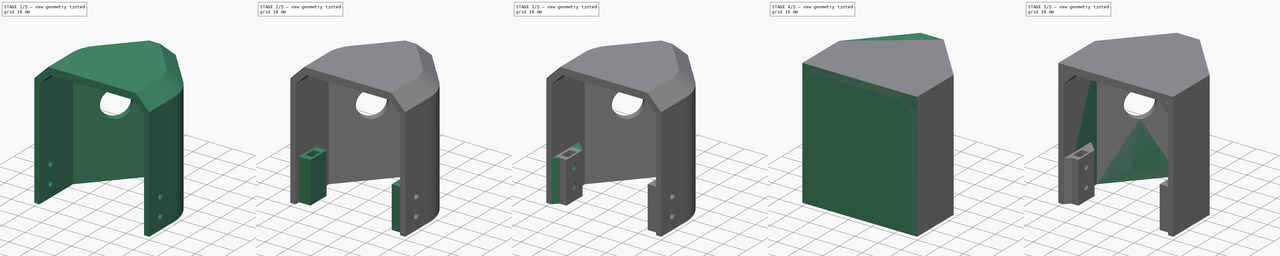
[diagram: build sequence overview — one tinted view per stage of 5, left to right]
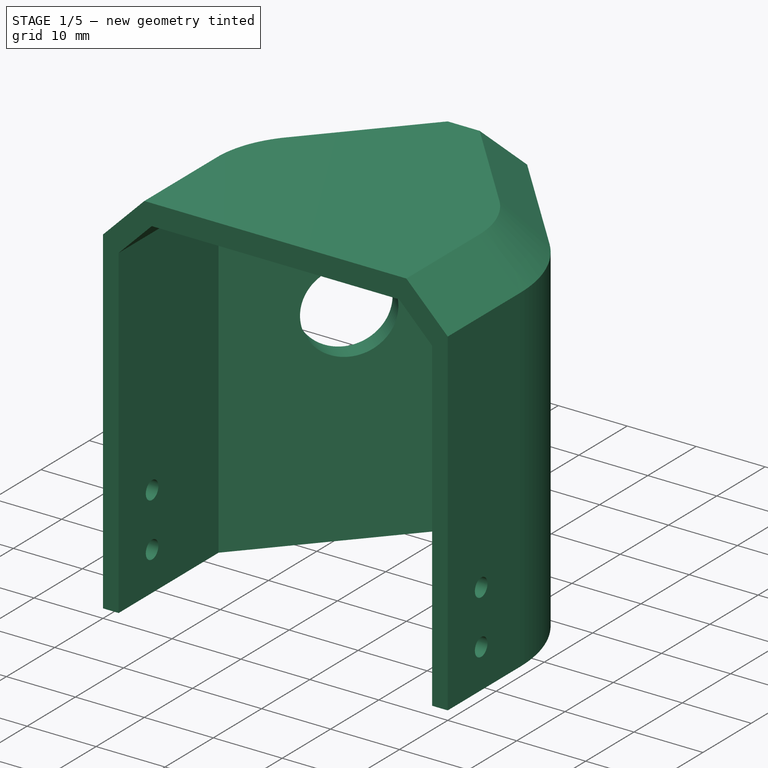
[diagram: stage 1 of 5 — iso view after this stage's code; geometry added in this stage tinted green]
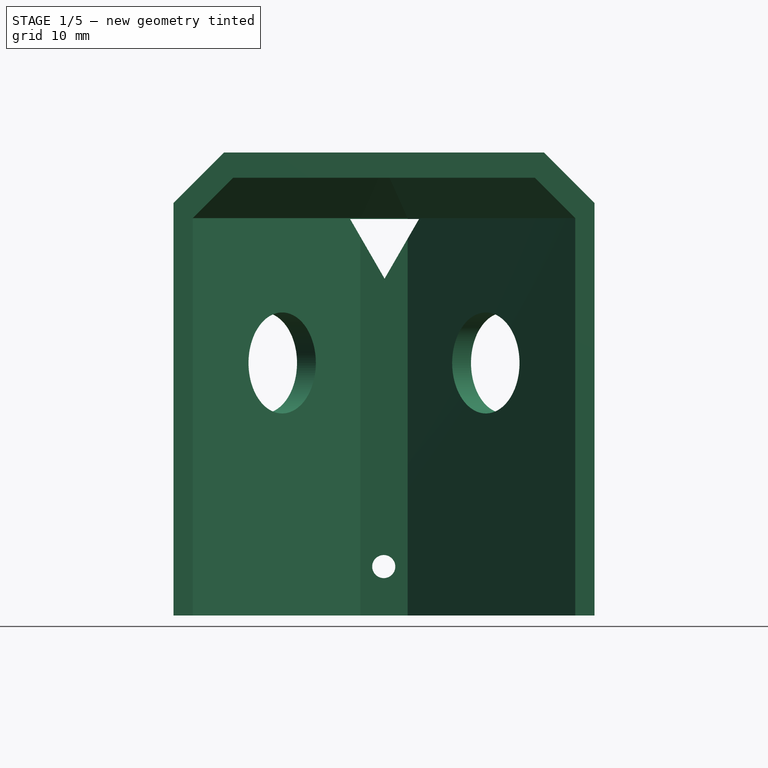
[diagram: stage 1 of 5 — front view after this stage's code; geometry added in this stage tinted green]
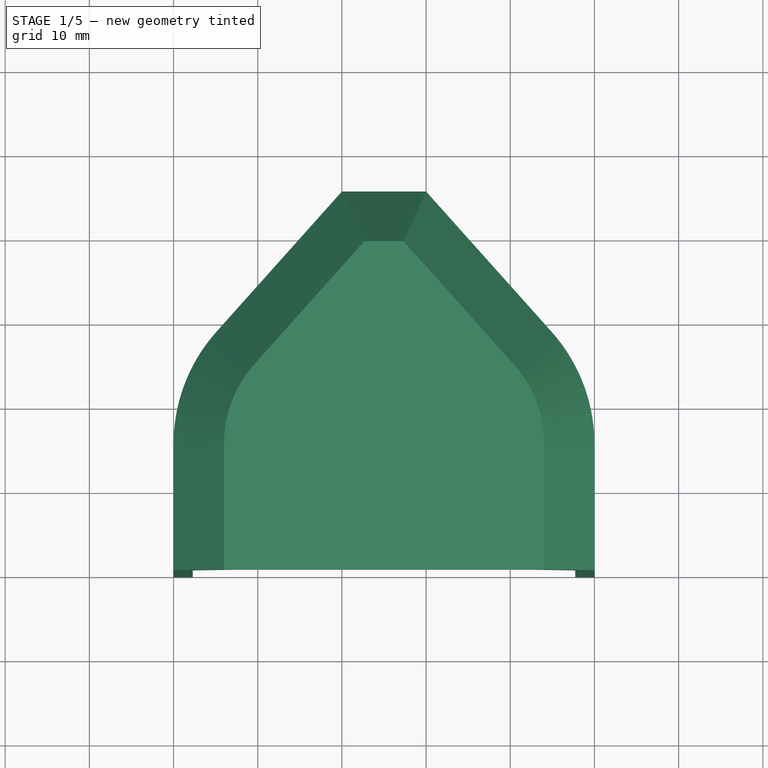
[diagram: stage 1 of 5 — top view after this stage's code; geometry added in this stage tinted green]
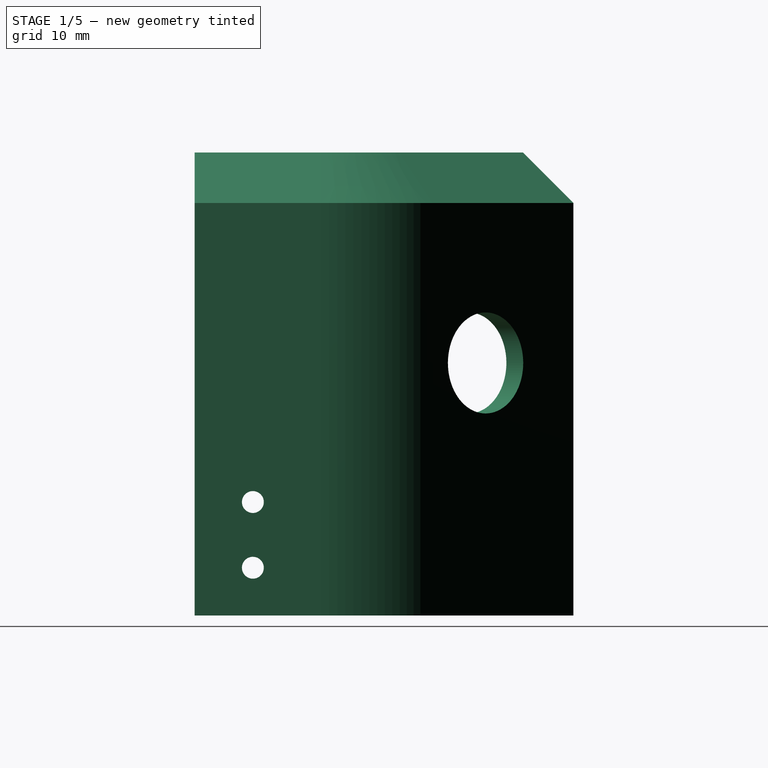
[diagram: stage 1 of 5 — right view after this stage's code; geometry added in this stage tinted green]
FCSTD DOCUMENT  (FreeCAD 0.16R6707 (Git))
Label: cabeza_v3
License: All rights reserved
LicenseURL: http://en.wikipedia.org/wiki/All_rights_reserved
objects: Sketcher::SketchObject×15, PartDesign::Pocket×11, PartDesign::Chamfer×6, PartDesign::Fillet×5, PartDesign::Pad×4, Part::Feature×1
note: 57 computed .brp shape members not serialized (recipe doc carries the construction recipe); baked Part::Feature solids carry a one-line shape summary decoded from their .brp

FEATURE [Part::Feature] Pad001001  label="Pad002"
  shape: bbox 50 x 45 x 55 mm, 21 faces (baked)
FEATURE [PartDesign::Fillet] Fillet
  Base = -> Pad001001 [Edge9]
  Radius = 20
FEATURE [PartDesign::Fillet] Fillet001
  Base = -> Fillet [Edge44]
  Radius = 20
FEATURE [Sketcher::SketchObject] Sketch006
  ExternalGeometry = -> [Fillet001]
  Placement = pos=(0,0,0) rot=(0.57735,-0.57735,-0.57735;2.0944rad)
  Support = -> Fillet001 [Face10]
  sketch-geometry (4):
    g0: LineSegment [constr] StartX=-6.92225 StartY=55 StartZ=0 EndX=-6.92225 EndY=0 EndZ=0
    g1: LineSegment [constr] StartX=-15 StartY=9.84667 StartZ=0 EndX=0 EndY=9.84667 EndZ=0
    g2: Circle CenterX=-6.92225 CenterY=13.4782 CenterZ=0 NormalX=0 NormalY=0 NormalZ=1 Radius=1.3
    g3: Circle CenterX=-6.92225 CenterY=5.67229 CenterZ=0 NormalX=0 NormalY=0 NormalZ=1 Radius=1.3
  constraints (10):
    c: PointOnObject(g0,g-3)
    c: PointOnObject(g0,g-1)
    c: Vertical(g0)
    c: PointOnObject(g1,g-4)
    c: PointOnObject(g1,g-2)
    c: Horizontal(g1)
    c: PointOnObject(g3,g0)
    c: PointOnObject(g2,g0)
    c: Radius(g3) = 1.3
    c: Equal(g3,g2)
FEATURE [PartDesign::Pocket] Pocket004
  Length = 5
  Sketch = -> Sketch006
  Type = 1
FEATURE [PartDesign::Chamfer] Chamfer
  Base = -> Pocket004 [Edge62,Edge58,Edge76,Edge48,Edge41]
  Size = 4.8
FEATURE [PartDesign::Chamfer] Chamfer001
  Base = -> Chamfer [Edge41,Edge39,Edge43,Edge40,Edge42,Edge44,Edge34]
  Size = 6
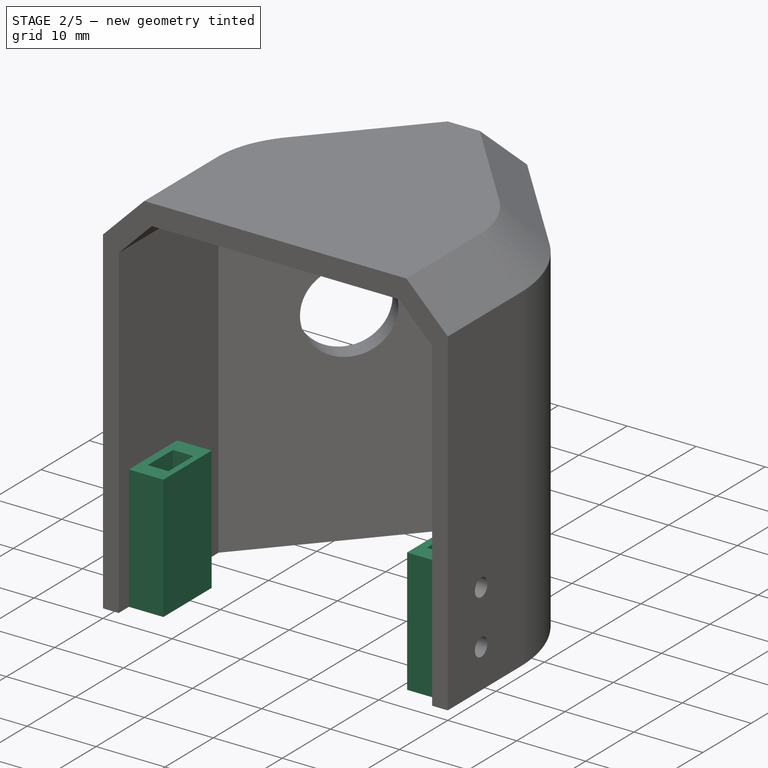
[diagram: stage 2 of 5 — iso view after this stage's code; geometry added in this stage tinted green]
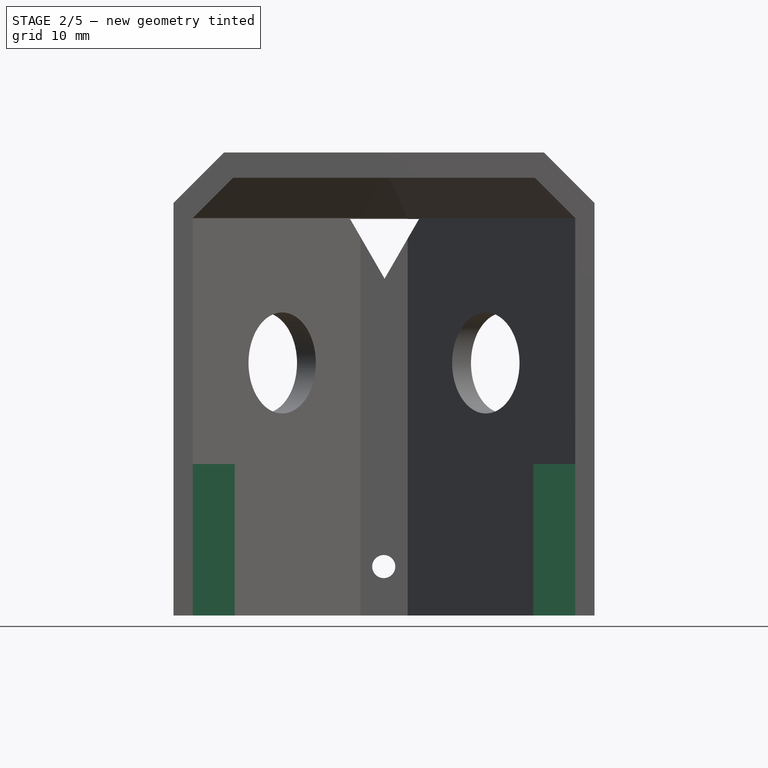
[diagram: stage 2 of 5 — front view after this stage's code; geometry added in this stage tinted green]
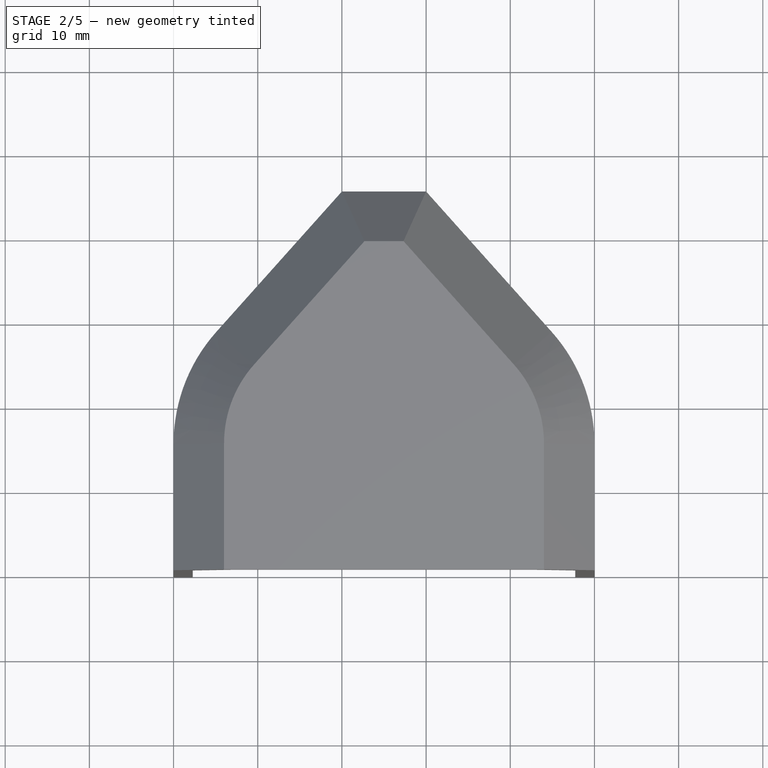
[diagram: stage 2 of 5 — top view after this stage's code; geometry added in this stage tinted green]
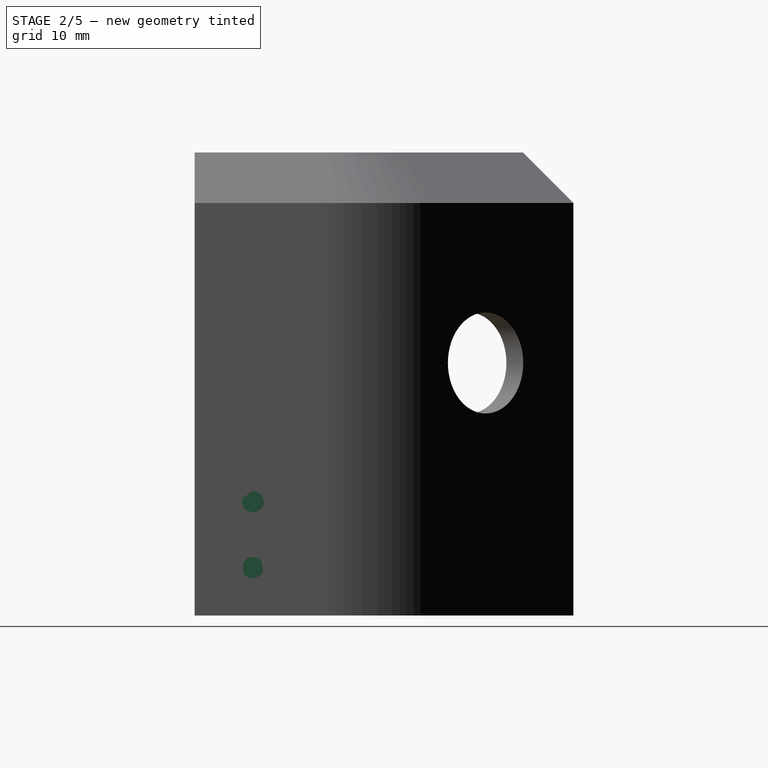
[diagram: stage 2 of 5 — right view after this stage's code; geometry added in this stage tinted green]
FEATURE [PartDesign::Fillet] Fillet002
  Base = -> Chamfer001 [Edge72]
  Radius = 1
FEATURE [Sketcher::SketchObject] Sketch007
  Placement = pos=(2.27374,0,0) rot=(0.57735,0.57735,0.57735;2.0944rad)
  Support = -> Fillet002 [Face23]
  sketch-geometry (4):
    g0: LineSegment StartX=2.12107 StartY=18 StartZ=0 EndX=12.1211 EndY=18 EndZ=0
    g1: LineSegment StartX=12.1211 StartY=18 StartZ=0 EndX=12.1211 EndY=0 EndZ=0
    g2: LineSegment StartX=12.1211 StartY=0 StartZ=0 EndX=2.12107 EndY=0 EndZ=0
    g3: LineSegment StartX=2.12107 StartY=0 StartZ=0 EndX=2.12107 EndY=18 EndZ=0
  constraints (11):
    c: Coincident(g0,g1)
    c: Coincident(g1,g2)
    c: Coincident(g2,g3)
    c: Coincident(g3,g0)
    c: Horizontal(g0)
    c: Horizontal(g2)
    c: Vertical(g1)
    c: Vertical(g3)
    c: DistanceX(g0,g0) = 10
    c: DistanceY(g3,g3) = 18
    c: PointOnObject(g1,g-1)
FEATURE [PartDesign::Pad] Pad001002
  Length = 5
  Length2 = 100
  Sketch = -> Sketch007
  Type = 0
FEATURE [Sketcher::SketchObject] Sketch008
  Placement = pos=(0,0,0) rot=(1,0,0;3.14159rad)
  Support = -> Pad001002 [Face4]
  sketch-geometry (4):
    g0: LineSegment StartX=3.40204 StartY=-4.41839 StartZ=0 EndX=6.40204 EndY=-4.41839 EndZ=0
    g1: LineSegment StartX=6.40204 StartY=-4.41839 StartZ=0 EndX=6.40204 EndY=-9.61839 EndZ=0
    g2: LineSegment StartX=6.40204 StartY=-9.61839 StartZ=0 EndX=3.40204 EndY=-9.61839 EndZ=0
    g3: LineSegment StartX=3.40204 StartY=-9.61839 StartZ=0 EndX=3.40204 EndY=-4.41839 EndZ=0
  constraints (10):
    c: Coincident(g0,g1)
    c: Coincident(g1,g2)
    c: Coincident(g2,g3)
    c: Coincident(g3,g0)
    c: Horizontal(g0)
    c: Horizontal(g2)
    c: Vertical(g1)
    c: Vertical(g3)
    c: DistanceY(g1,g1) = 5.2
    c: DistanceX(g2,g2) = 3
FEATURE [PartDesign::Pocket] Pocket005
  Length = 21
  Sketch = -> Sketch008
  Type = 0
FEATURE [Sketcher::SketchObject] Sketch009
  Placement = pos=(47.7263,0,0) rot=(0.57735,-0.57735,-0.57735;2.0944rad)
  Support = -> Pocket005 [Face21]
  sketch-geometry (4):
    g0: LineSegment StartX=-11.9674 StartY=18 StartZ=0 EndX=-1.96738 EndY=18 EndZ=0
    g1: LineSegment StartX=-1.96738 StartY=18 StartZ=0 EndX=-1.96738 EndY=0 EndZ=0
    g2: LineSegment StartX=-1.96738 StartY=0 StartZ=0 EndX=-11.9674 EndY=0 EndZ=0
    g3: LineSegment StartX=-11.9674 StartY=0 StartZ=0 EndX=-11.9674 EndY=18 EndZ=0
  constraints (11):
    c: Coincident(g0,g1)
    c: Coincident(g1,g2)
    c: Coincident(g2,g3)
    c: Coincident(g3,g0)
    c: Horizontal(g0)
    c: Horizontal(g2)
    c: Vertical(g1)
    c: Vertical(g3)
    c: PointOnObject(g1,g-1)
    c: DistanceY(g1,g1) = 18
    c: DistanceX(g0,g0) = 10
FEATURE [PartDesign::Pad] Pad001003
  Length = 5
  Length2 = 100
  Sketch = -> Sketch009
  Type = 0
FEATURE [Sketcher::SketchObject] Sketch010
  ExternalGeometry = -> [Pad001003]
  Placement = pos=(0,0,0) rot=(1,0,0;3.14159rad)
  Support = -> Pad001003 [Face23]
  sketch-geometry (5):
    g0: LineSegment StartX=43.8915 StartY=-4.41839 StartZ=0 EndX=46.8915 EndY=-4.41839 EndZ=0
    g1: LineSegment StartX=46.8915 StartY=-4.41839 StartZ=0 EndX=46.8915 EndY=-9.61839 EndZ=0
    g2: LineSegment StartX=46.8915 StartY=-9.61839 StartZ=0 EndX=43.8915 EndY=-9.61839 EndZ=0
    g3: LineSegment StartX=43.8915 StartY=-9.61839 StartZ=0 EndX=43.8915 EndY=-4.41839 EndZ=0
    g4: LineSegment [constr] StartX=6.40204 StartY=-9.61839 StartZ=0 EndX=43.8915 EndY=-9.61839 EndZ=0
  constraints (13):
    c: Coincident(g0,g1)
    c: Coincident(g1,g2)
    c: Coincident(g2,g3)
    c: Coincident(g3,g0)
    c: Horizontal(g0)
    c: Horizontal(g2)
    c: Vertical(g1)
    c: Vertical(g3)
    c: Equal(g3,g-3)
    c: Equal(g-4,g0)
    c: Horizontal(g4)
    c: Coincident(g4,g2)
    c: Coincident(g4,g-3)
FEATURE [PartDesign::Pocket] Pocket006
  Length = 25
  Sketch = -> Sketch010
  Type = 0
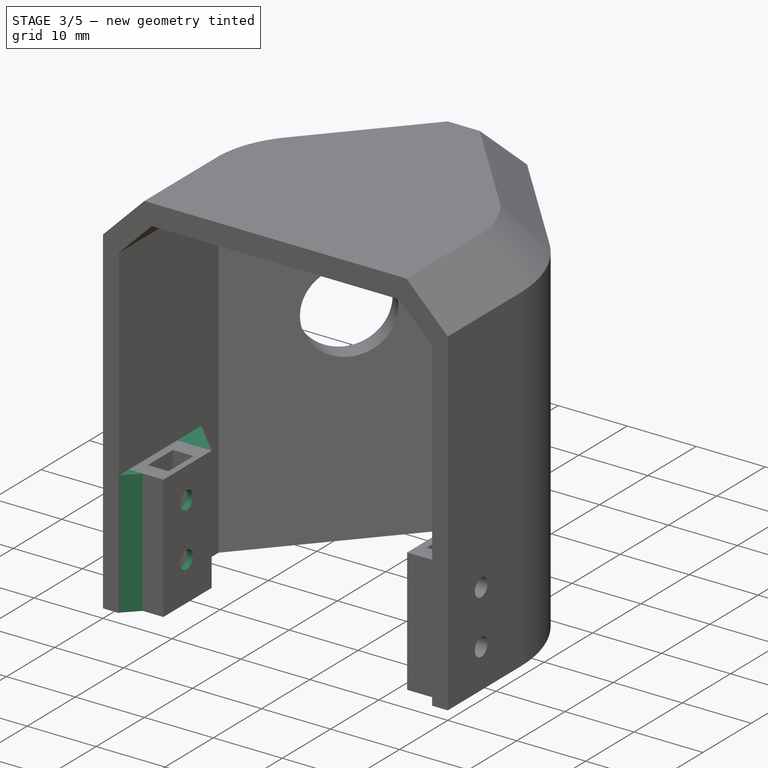
[diagram: stage 3 of 5 — iso view after this stage's code; geometry added in this stage tinted green]
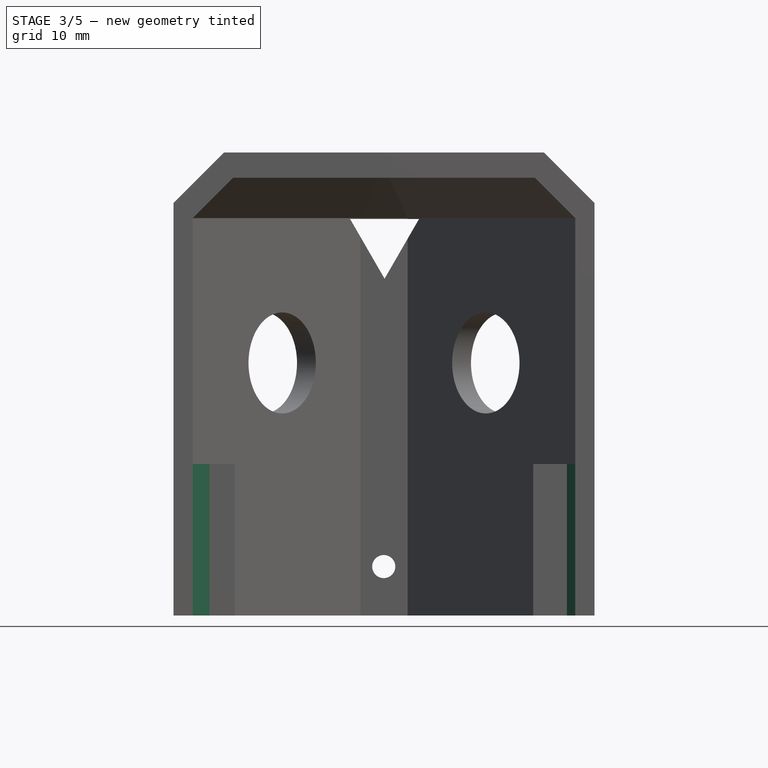
[diagram: stage 3 of 5 — front view after this stage's code; geometry added in this stage tinted green]
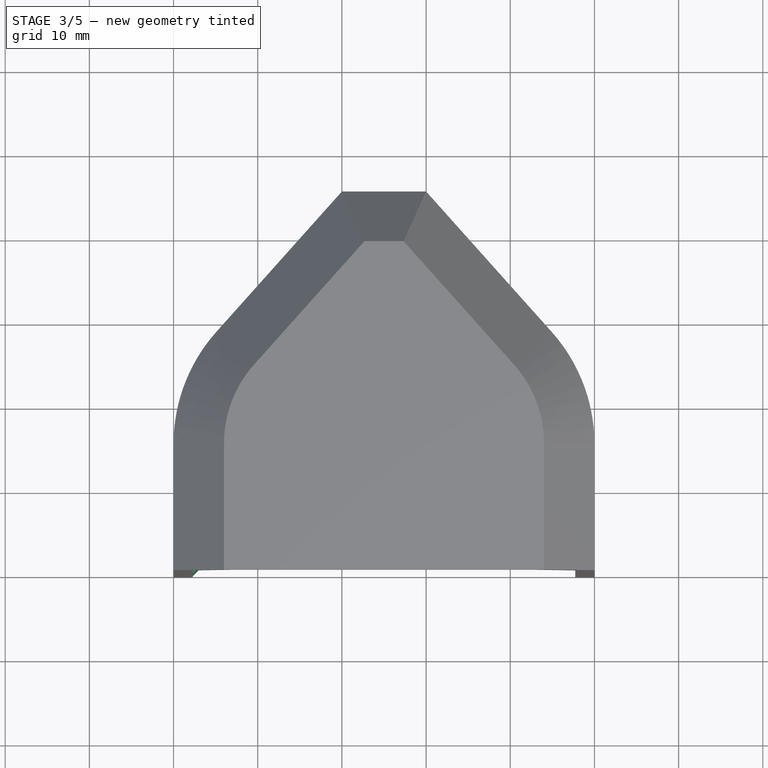
[diagram: stage 3 of 5 — top view after this stage's code; geometry added in this stage tinted green]
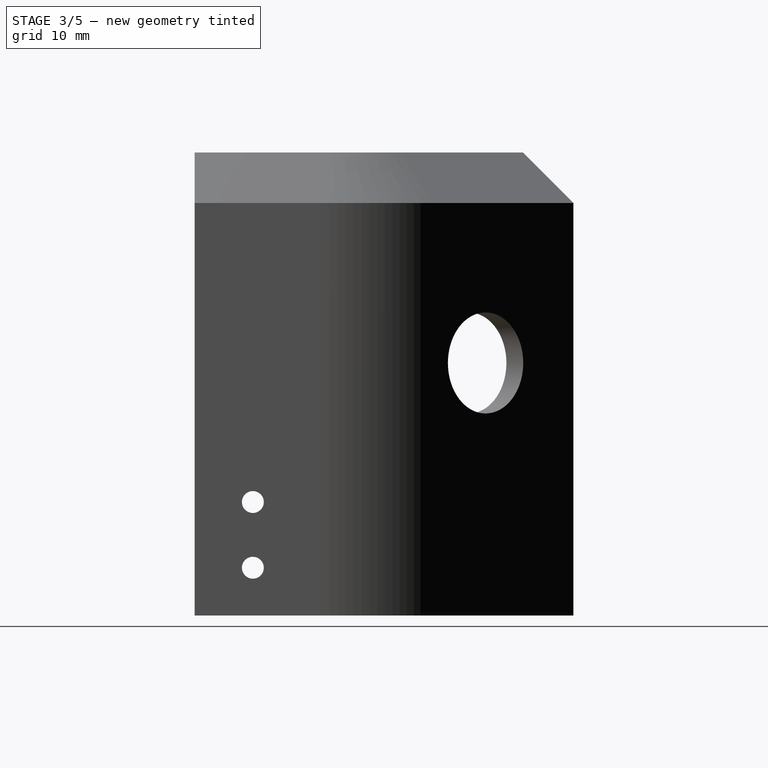
[diagram: stage 3 of 5 — right view after this stage's code; geometry added in this stage tinted green]
FEATURE [Sketcher::SketchObject] Sketch011
  ExternalGeometry = -> [Pocket006]
  Placement = pos=(47.7263,0,0) rot=(0.57735,0.57735,0.57735;2.0944rad)
  Support = -> Pocket006 [Face59]
  sketch-geometry (1):
    g0: Circle CenterX=6.92225 CenterY=13.4782 CenterZ=0 NormalX=0 NormalY=0 NormalZ=1 Radius=1.3
  constraints (2):
    c: Coincident(g0,g-3)
    c: Equal(g0,g-3)
FEATURE [PartDesign::Pocket] Pocket007
  Length = 5
  Sketch = -> Sketch011
  Type = 1
FEATURE [Sketcher::SketchObject] Sketch012
  ExternalGeometry = -> [Pocket007]
  Placement = pos=(47.7263,0,0) rot=(0.57735,0.57735,0.57735;2.0944rad)
  Support = -> Pocket007 [Face63]
  sketch-geometry (1):
    g0: Circle CenterX=6.92225 CenterY=5.67229 CenterZ=0 NormalX=0 NormalY=0 NormalZ=1 Radius=1.3
  constraints (2):
    c: Coincident(g0,g-3)
    c: Equal(g-3,g0)
FEATURE [PartDesign::Pocket] Pocket008
  Length = 5
  Sketch = -> Sketch012
  Type = 1
FEATURE [PartDesign::Chamfer] Chamfer002
  Base = -> Pocket008 [Edge99]
  Size = 4.99
FEATURE [PartDesign::Chamfer] Chamfer003
  Base = -> Chamfer002 [Edge61]
  Size = 4.99
FEATURE [PartDesign::Chamfer] Chamfer004
  Base = -> Chamfer003 [Edge27]
  Size = 2
FEATURE [PartDesign::Chamfer] Chamfer005
  Base = -> Chamfer004 [Edge90]
  Size = 2
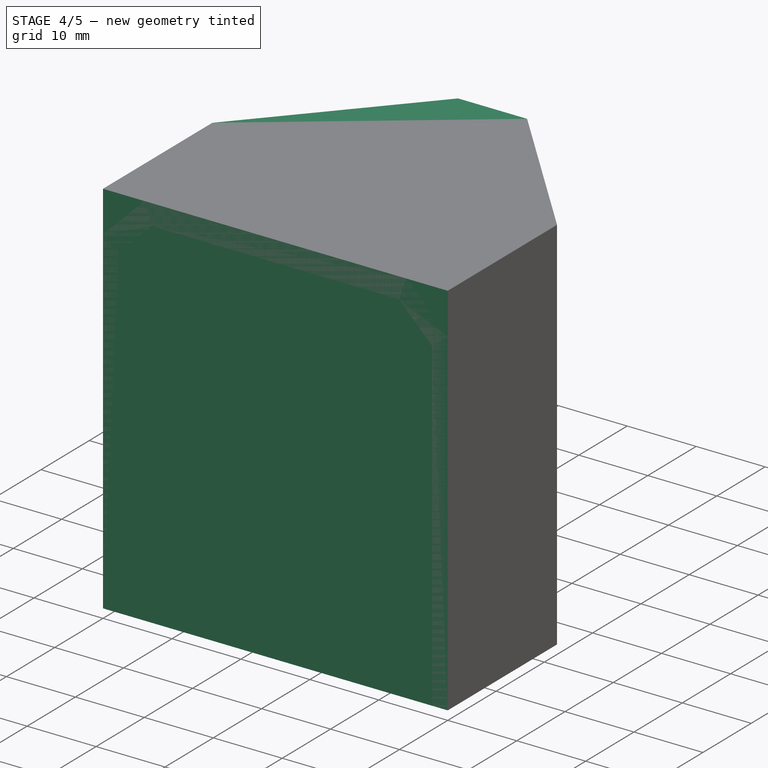
[diagram: stage 4 of 5 — iso view after this stage's code; geometry added in this stage tinted green]
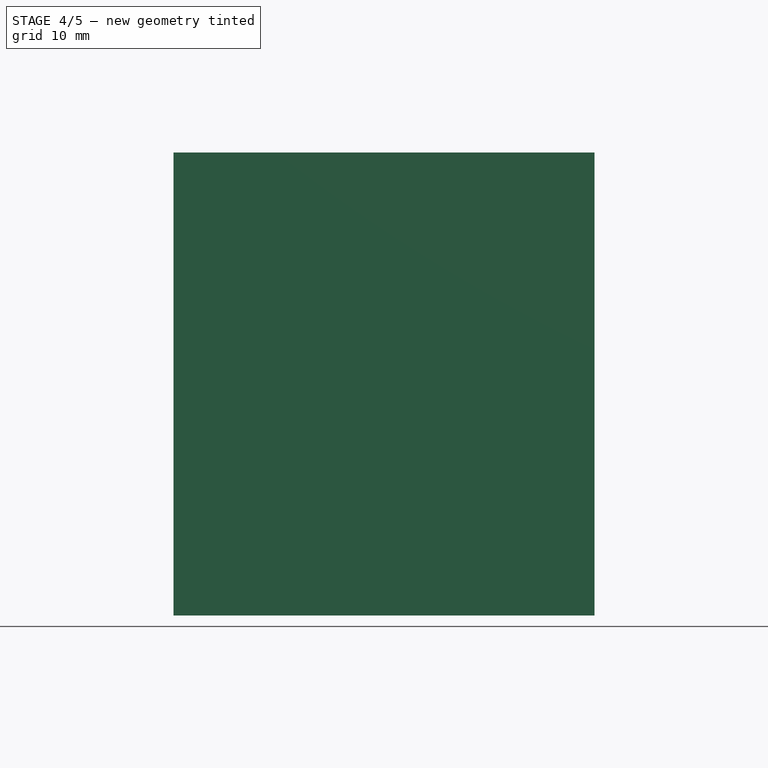
[diagram: stage 4 of 5 — front view after this stage's code; geometry added in this stage tinted green]
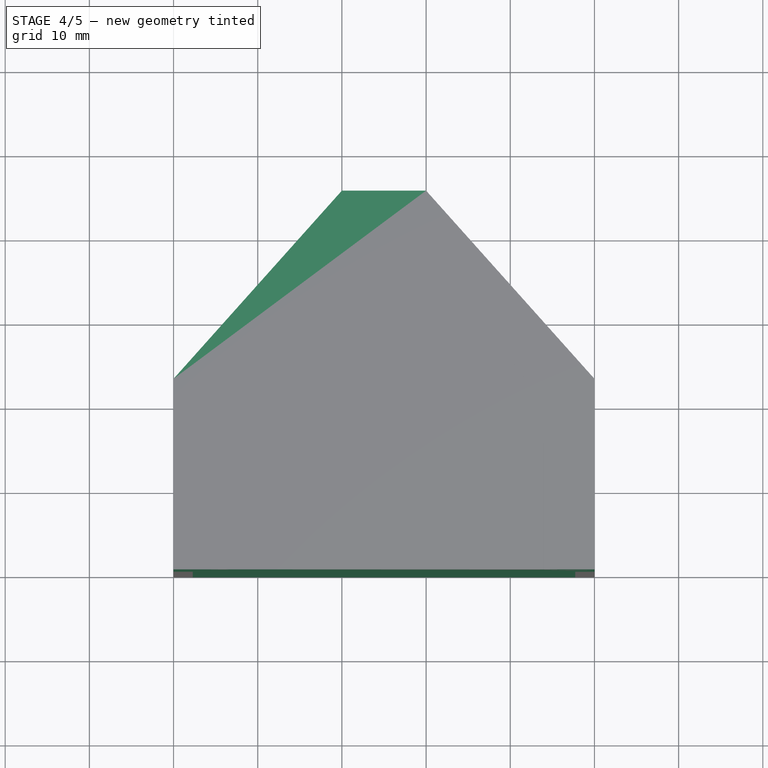
[diagram: stage 4 of 5 — top view after this stage's code; geometry added in this stage tinted green]
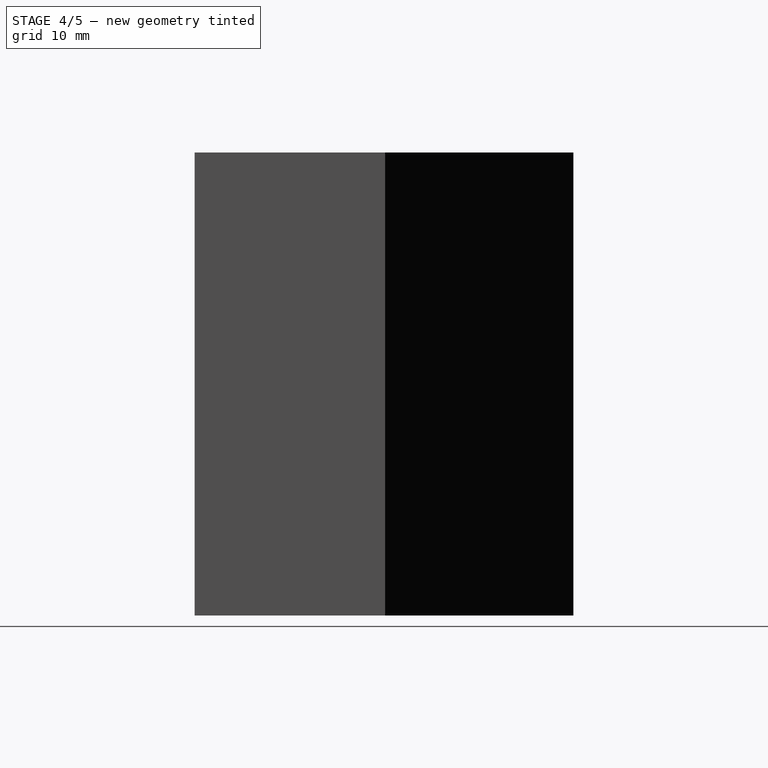
[diagram: stage 4 of 5 — right view after this stage's code; geometry added in this stage tinted green]
FEATURE [Sketcher::SketchObject] Sketch
  sketch-geometry (6):
    g0: LineSegment StartX=20 StartY=45 StartZ=0 EndX=30 EndY=45 EndZ=0
    g1: LineSegment StartX=30 StartY=45 StartZ=0 EndX=50 EndY=22.6393 EndZ=0
    g2: LineSegment StartX=50 StartY=22.6393 StartZ=0 EndX=50 EndY=0 EndZ=0
    g3: LineSegment StartX=50 StartY=0 StartZ=0 EndX=0 EndY=0 EndZ=0
    g4: LineSegment StartX=0 StartY=0 StartZ=0 EndX=0 EndY=22.6393 EndZ=0
    g5: LineSegment StartX=0 StartY=22.6393 StartZ=0 EndX=20 EndY=45 EndZ=0
  constraints (17):
    c: Horizontal(g0)
    c: Coincident(g0,g1)
    c: Coincident(g1,g2)
    c: Vertical(g2)
    c: Coincident(g2,g3)
    c: Horizontal(g3)
    c: Coincident(g3,g4)
    c: Vertical(g4)
    c: Coincident(g4,g5)
    c: Coincident(g5,g0)
    c: Equal(g5,g1)
    c: Distance(g0,g1) = 30
    c: DistanceX(g3,g3) = 50
    c: Equal(g2,g4)
    c: Distance(g0,g3) = 45
    c: DistanceX(g0,g0) = 10
    c: Coincident(g3,g-1)
FEATURE [PartDesign::Pad] Pad
  Length = 55
  Length2 = 100
  Sketch = -> Sketch
  Type = 0
FEATURE [Sketcher::SketchObject] Sketch013
  Placement = pos=(-9.01391,8.06228,0) rot=(0.845154,0.377964,0.377964;1.73824rad)
  Support = -> Chamfer005 [Face12]
  sketch-geometry (4):
    g0: LineSegment StartX=29.7649 StartY=9.18481 StartZ=0 EndX=34.7649 EndY=9.18481 EndZ=0
    g1: LineSegment StartX=34.7649 StartY=9.18481 StartZ=0 EndX=34.7649 EndY=4.18481 EndZ=0
    g2: LineSegment StartX=34.7649 StartY=4.18481 StartZ=0 EndX=29.7649 EndY=4.18481 EndZ=0
    g3: LineSegment StartX=29.7649 StartY=4.18481 StartZ=0 EndX=29.7649 EndY=9.18481 EndZ=0
  constraints (10):
    c: Coincident(g0,g1)
    c: Coincident(g1,g2)
    c: Coincident(g2,g3)
    c: Coincident(g3,g0)
    c: Horizontal(g0)
    c: Horizontal(g2)
    c: Vertical(g1)
    c: Vertical(g3)
    c: Equal(g2,g1)
    c: DistanceX(g2,g2) = 5
FEATURE [PartDesign::Pocket] Pocket009
  Length = 1
  Sketch = -> Sketch013
  Type = 0
FEATURE [Sketcher::SketchObject] Sketch014
  Placement = pos=(36.7917,32.9075,0) rot=(0.845154,-0.377964,-0.377964;1.73824rad)
  Support = -> Pocket009 [Face8]
  sketch-geometry (4):
    g0: LineSegment StartX=-2.46885 StartY=9.37616 StartZ=0 EndX=2.53115 EndY=9.37616 EndZ=0
    g1: LineSegment StartX=2.53115 StartY=9.37616 StartZ=0 EndX=2.53115 EndY=4.37616 EndZ=0
    g2: LineSegment StartX=2.53115 StartY=4.37616 StartZ=0 EndX=-2.46885 EndY=4.37616 EndZ=0
    g3: LineSegment StartX=-2.46885 StartY=4.37616 StartZ=0 EndX=-2.46885 EndY=9.37616 EndZ=0
  constraints (10):
    c: Coincident(g0,g1)
    c: Coincident(g1,g2)
    c: Coincident(g2,g3)
    c: Coincident(g3,g0)
    c: Horizontal(g0)
    c: Horizontal(g2)
    c: Vertical(g1)
    c: Vertical(g3)
    c: Equal(g2,g1)
    c: DistanceY(g1,g1) = 5
FEATURE [PartDesign::Pocket] Pocket010
  Length = 1
  Sketch = -> Sketch014
  Type = 0
FEATURE [PartDesign::Fillet] Fillet003
  Base = -> Pocket010 [Edge80]
  Radius = 1
FEATURE [PartDesign::Fillet] Fillet004
  Base = -> Fillet003 [Edge88]
  Radius = 1
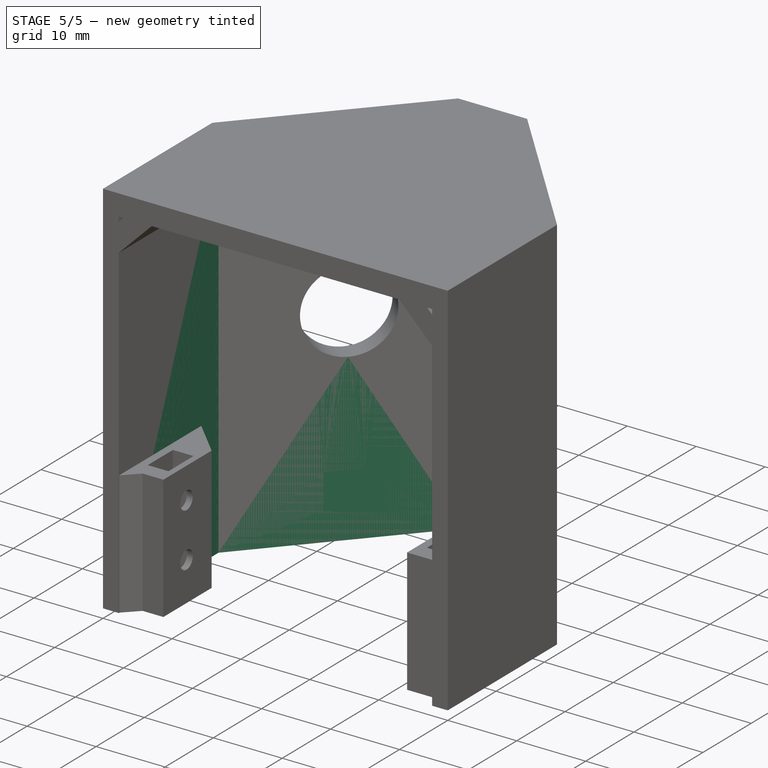
[diagram: stage 5 of 5 — iso view after this stage's code; geometry added in this stage tinted green]
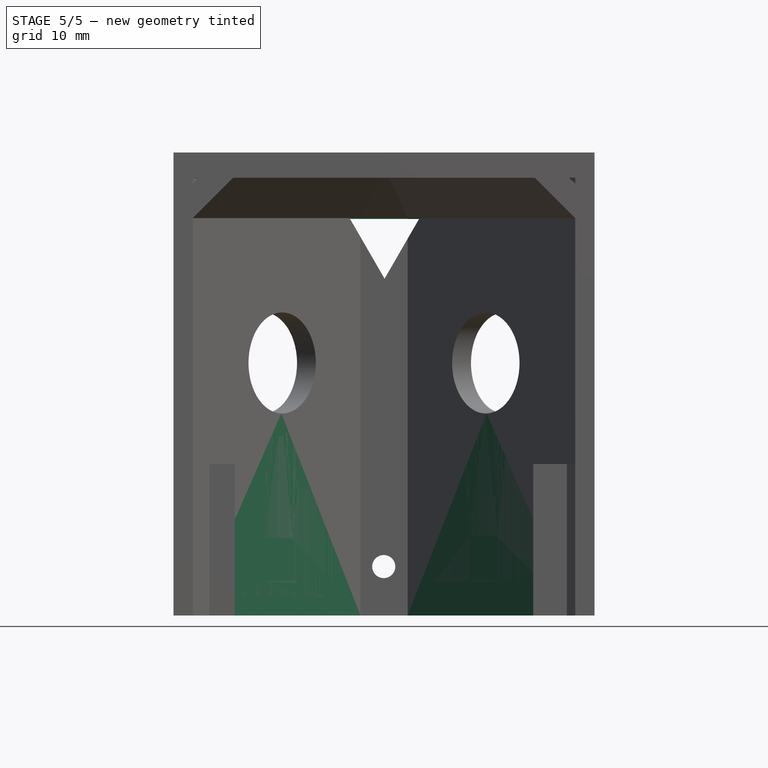
[diagram: stage 5 of 5 — front view after this stage's code; geometry added in this stage tinted green]
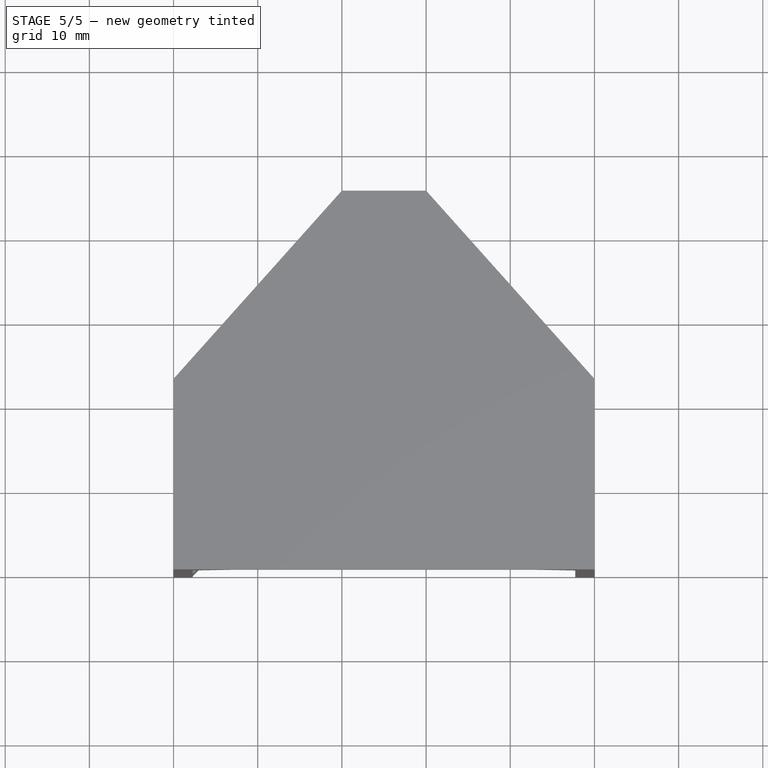
[diagram: stage 5 of 5 — top view after this stage's code; geometry added in this stage tinted green]
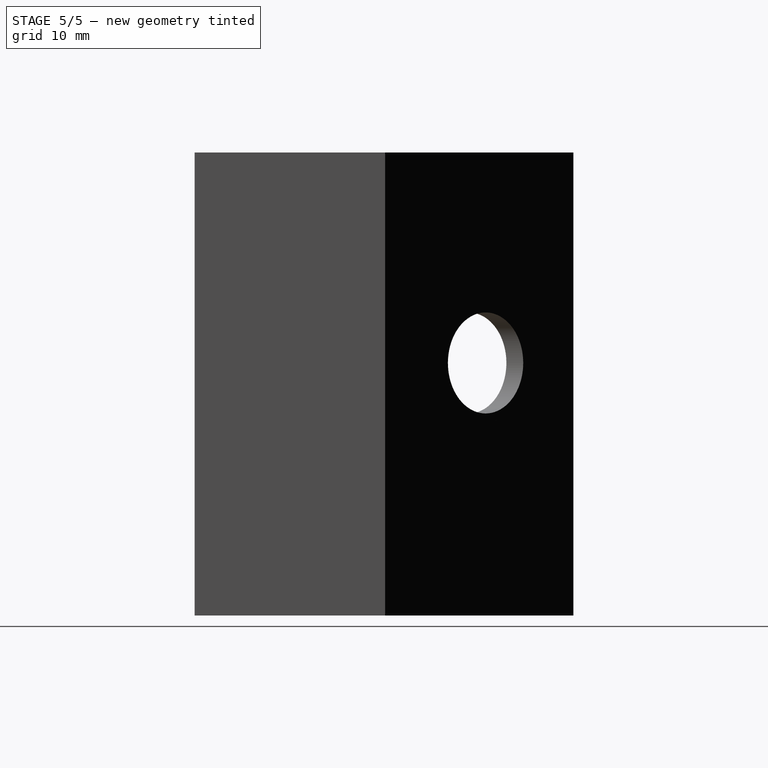
[diagram: stage 5 of 5 — right view after this stage's code; geometry added in this stage tinted green]
FEATURE [Sketcher::SketchObject] Sketch001
  ExternalGeometry = -> [Pad]
  Placement = pos=(-11.2496,10.0619,0) rot=(-0.301511,0.6742,0.6742;3.72728rad)
  Support = -> Pad [Face6]
  sketch-geometry (1):
    g0: Circle CenterX=-32.8744 CenterY=30 CenterZ=0 NormalX=0 NormalY=0 NormalZ=1 Radius=6
  constraints (3):
    c: Radius(g0) = 6
    c: Distance(g0,g-3) = 14
    c: DistanceY(g-1,g0) = 30
FEATURE [PartDesign::Pocket] Pocket
  Length = 10
  Sketch = -> Sketch001
  Type = 0
FEATURE [Sketcher::SketchObject] Sketch002
  ExternalGeometry = -> [Pocket]
  Placement = pos=(39.0273,34.9071,0) rot=(0.301511,0.6742,0.6742;2.55591rad)
  Support = -> Pocket [Face3]
  sketch-geometry (1):
    g0: Circle CenterX=-0.45898 CenterY=30 CenterZ=0 NormalX=0 NormalY=0 NormalZ=1 Radius=6
  constraints (3):
    c: Radius(g0) = 6
    c: Distance(g0,g-3) = 14
    c: DistanceY(g-1,g0) = 30
FEATURE [PartDesign::Pocket] Pocket001
  Length = 10
  Sketch = -> Sketch002
  Type = 0
FEATURE [Sketcher::SketchObject] Sketch003
  Placement = pos=(0,45,0) rot=(0,0.707107,0.707107;3.14159rad)
  Support = -> Pocket001 [Face1]
  sketch-geometry (4):
    g0: Circle CenterX=-24.9689 CenterY=5.81096 CenterZ=0 NormalX=0 NormalY=0 NormalZ=1 Radius=1.37135
    g1: LineSegment StartX=-29.1627 StartY=47.1029 StartZ=0 EndX=-20.9734 EndY=47.1029 EndZ=0
    g2: LineSegment StartX=-20.9734 StartY=47.1029 StartZ=0 EndX=-25.0681 EndY=40.0108 EndZ=0
    g3: LineSegment StartX=-25.0681 StartY=40.0108 StartZ=0 EndX=-29.1627 EndY=47.1029 EndZ=0
  constraints (6):
    c: Horizontal(g1)
    c: Coincident(g1,g2)
    c: Coincident(g2,g3)
    c: Coincident(g3,g1)
    c: Equal(g3,g2)
    c: Equal(g2,g1)
FEATURE [PartDesign::Pocket] Pocket002
  Length = 10
  Sketch = -> Sketch003
  Type = 0
FEATURE [Sketcher::SketchObject] Sketch004
  ExternalGeometry = -> [Pocket002]
  Placement = pos=(0,0,55) rot=(0,0,1;0rad)
  Support = -> Pocket002 [Face4]
  sketch-geometry (6):
    g0: LineSegment StartX=22.1976 StartY=42.9578 StartZ=0 EndX=27.8024 EndY=42.9578 EndZ=0
    g1: LineSegment StartX=27.8024 StartY=42.9578 StartZ=0 EndX=47.7263 EndY=20.6823 EndZ=0
    g2: LineSegment StartX=47.7263 StartY=20.6823 StartZ=0 EndX=47.7263 EndY=0 EndZ=0
    g3: LineSegment StartX=47.7263 StartY=0 StartZ=0 EndX=2.27374 EndY=0 EndZ=0
    g4: LineSegment StartX=2.27374 StartY=0 StartZ=0 EndX=2.27374 EndY=20.6823 EndZ=0
    g5: LineSegment StartX=2.27374 StartY=20.6823 StartZ=0 EndX=22.1976 EndY=42.9578 EndZ=0
  constraints (17):
    c: Horizontal(g0)
    c: Coincident(g0,g1)
    c: Coincident(g1,g2)
    c: Vertical(g2)
    c: Coincident(g2,g3)
    c: Horizontal(g3)
    c: Coincident(g3,g4)
    c: Vertical(g4)
    c: Coincident(g4,g5)
    c: Coincident(g5,g0)
    c: Parallel(g1,g-5)
    c: Parallel(g5,g-3)
    c: Distance(g1,g-6) = 3
    c: Distance(g4,g-3) = 3
    c: Distance(g0,g-5) = 3
    c: Distance(g0,g-4) = 3
    c: PointOnObject(g2,g-1)
FEATURE [PartDesign::Pocket] Pocket003
  Length = 5
  Sketch = -> Sketch004
  Type = 1
FEATURE [Sketcher::SketchObject] Sketch005
  ExternalGeometry = -> [Pocket003]
  Placement = pos=(0,0,55) rot=(0,0,1;0rad)
  Support = -> Pocket003 [Face4]
  sketch-geometry (6):
    g0: LineSegment StartX=22.1976 StartY=42.9578 StartZ=0 EndX=27.8024 EndY=42.9578 EndZ=0
    g1: LineSegment StartX=27.8024 StartY=42.9578 StartZ=0 EndX=47.7263 EndY=20.6823 EndZ=0
    g2: LineSegment StartX=47.7263 StartY=20.6823 StartZ=0 EndX=47.7263 EndY=0 EndZ=0
    g3: LineSegment StartX=47.7263 StartY=0 StartZ=0 EndX=2.27374 EndY=0 EndZ=0
    g4: LineSegment StartX=2.27374 StartY=0 StartZ=0 EndX=2.27374 EndY=20.6823 EndZ=0
    g5: LineSegment StartX=2.27374 StartY=20.6823 StartZ=0 EndX=22.1976 EndY=42.9578 EndZ=0
  constraints (15):
    c: Coincident(g0,g1)
    c: Coincident(g1,g2)
    c: Vertical(g2)
    c: Coincident(g2,g3)
    c: Horizontal(g3)
    c: Coincident(g3,g4)
    c: Vertical(g4)
    c: Coincident(g4,g5)
    c: Coincident(g5,g0)
    c: Coincident(g3,g-7)
    c: Coincident(g2,g-6)
    c: Coincident(g0,g-4)
    c: Coincident(g0,g-5)
    c: Coincident(g4,g-7)
    c: Coincident(g1,g-6)
FEATURE [PartDesign::Pad] Pad001
  Length = 3
  Length2 = 100
  Reversed = true
  Sketch = -> Sketch005
  Type = 0
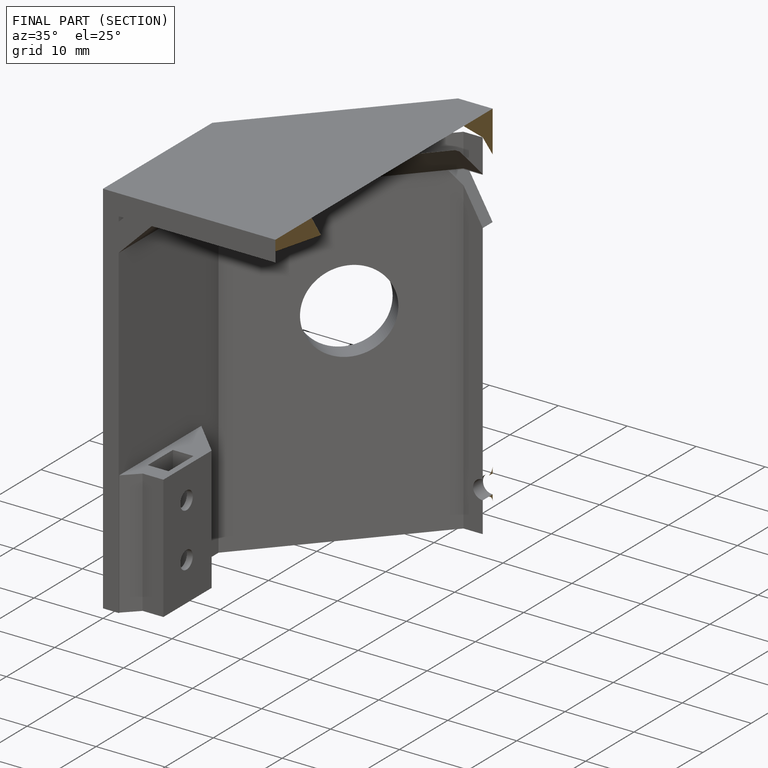
[diagram: finished part — half-section view (interior)]
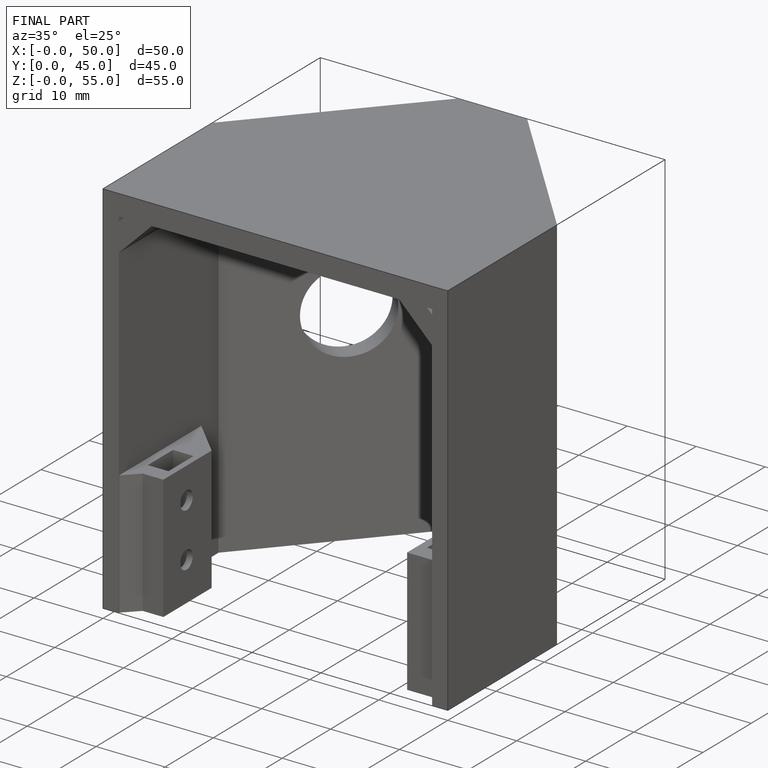
[diagram: finished part — iso view with bounding-box wireframe]
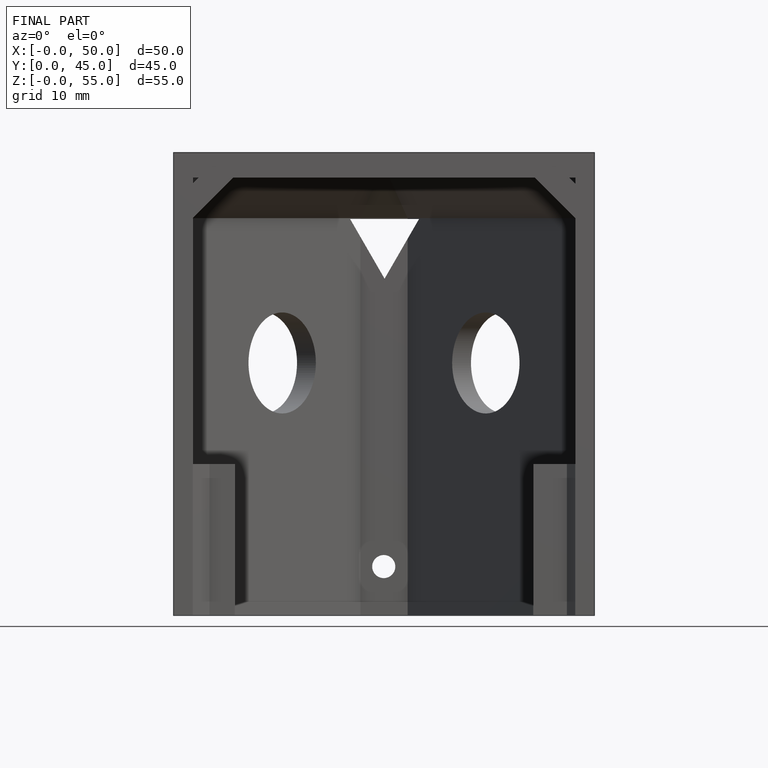
[diagram: finished part — front view with bounding-box wireframe]
